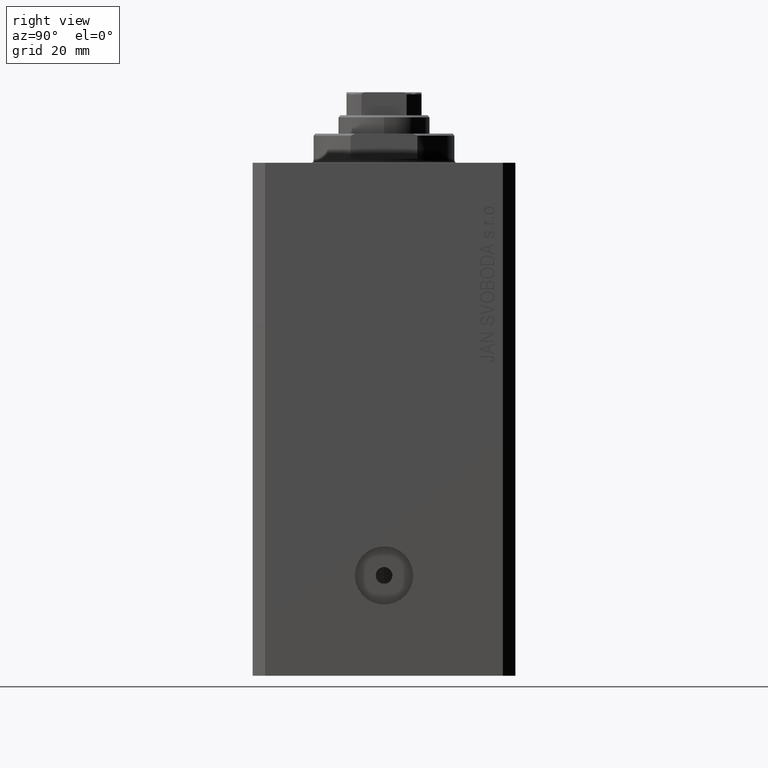
[diagram: clean part render]
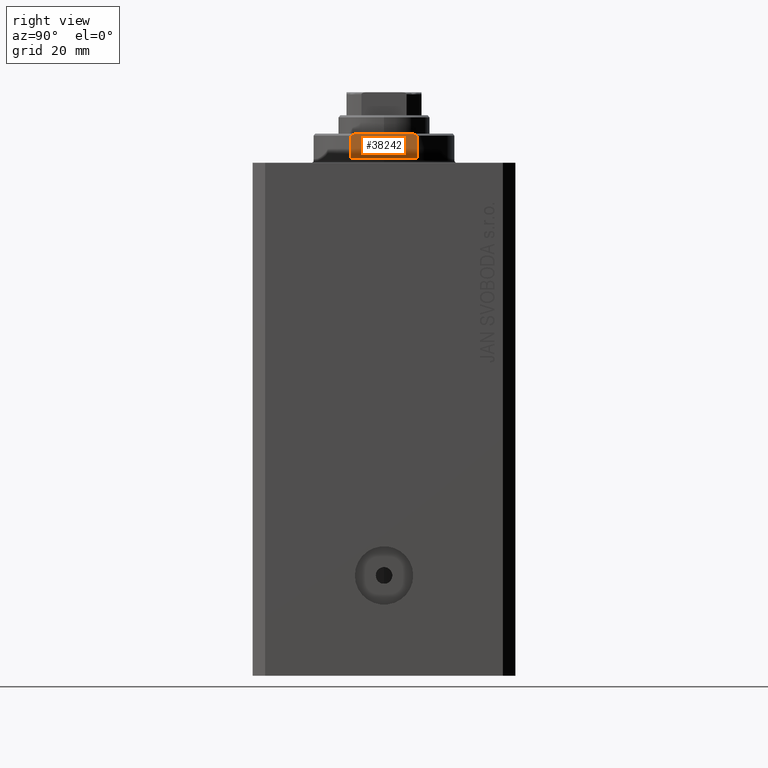
[diagram: same view with one face highlighted and labeled with its STEP entity id]
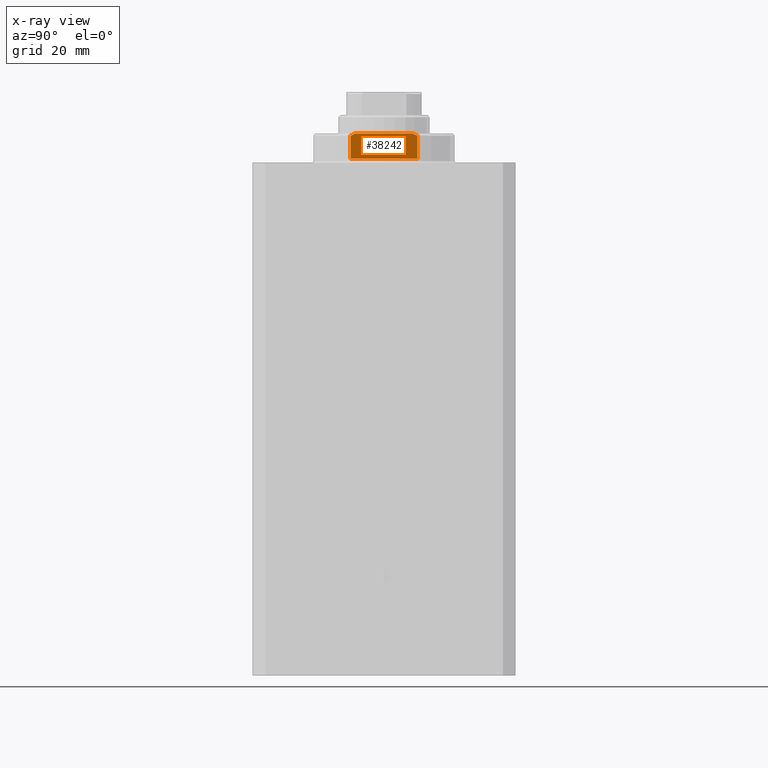
[diagram: x-ray of the same camera — body ghosted, the highlighted face saturated]
A machine part, right view. The second image highlights one B-rep face of the part: STEP entity #38242.
The next image is the same camera in x-ray: the body ghosted, the highlighted face saturated — about 0% of this face is hidden behind the body in this view.
In plain terms, the highlighted planar face has unit normal (-1, 0, 0).
Its self-contained STEP definition (entity closure, byte-faithful):
#974 = VERTEX_POINT ( 'NONE', #27407 ) ;
#1247 = B_SPLINE_CURVE_WITH_KNOTS ( 'NONE', 3,
 ( #40338, #9620, #6260, #3988 ),
 .UNSPECIFIED., .F., .F.,
 ( 4, 4 ),
 ( 0.03336039268696994881, 0.03459498301323800373 ),
 .UNSPECIFIED. ) ;
#1963 = EDGE_CURVE ( 'NONE', #32663, #28319, #29166, .T. ) ;
#2610 = VECTOR ( 'NONE', #17260, 1000.000000000000000 ) ;
#3756 = PLANE ( 'NONE',  #25317 ) ;
#3988 = CARTESIAN_POINT ( 'NONE',  ( -14.99999999999999645, 6.873863542433781504, -7.000000000000000000 ) ) ;
#4201 = DIRECTION ( 'NONE',  ( 0.000000000000000000, 0.000000000000000000, -1.000000000000000000 ) ) ;
#4483 = EDGE_LOOP ( 'NONE', ( #34597, #42770, #8025, #4970, #31559, #22588 ) ) ;
#4970 = ORIENTED_EDGE ( 'NONE', *, *, #40008, .F. ) ;
#6260 = CARTESIAN_POINT ( 'NONE',  ( -15.00000000000000000, 7.253126193285938328, -6.842000017654663147 ) ) ;
#8025 = ORIENTED_EDGE ( 'NONE', *, *, #29683, .T. ) ;
#9283 = EDGE_CURVE ( 'NONE', #11512, #44139, #28437, .T. ) ;
#9620 = CARTESIAN_POINT ( 'NONE',  ( -15.00000000000000000, 7.628315461082487481, -6.674910371255303509 ) ) ;
#11164 = CARTESIAN_POINT ( 'NONE',  ( -15.00000000000000000, -42.42640687119285303, -1.000000000000000000 ) ) ;
#11512 = VERTEX_POINT ( 'NONE', #40446 ) ;
#12474 = VECTOR ( 'NONE', #43948, 1000.000000000000000 ) ;
#13499 = CARTESIAN_POINT ( 'NONE',  ( -14.99999999999999645, 6.873863542433781504, -7.000000000000000000 ) ) ;
#13618 = CARTESIAN_POINT ( 'NONE',  ( -15.00000000000000000, -7.254193676168137372, -6.841555306644506729 ) ) ;
#13883 = EDGE_CURVE ( 'NONE', #11512, #32663, #1247, .T. ) ;
#14300 = DIRECTION ( 'NONE',  ( 1.000000000000000000, 0.000000000000000000, 0.000000000000000000 ) ) ;
#14366 = EDGE_CURVE ( 'NONE', #44139, #41620, #24644, .T. ) ;
#17260 = DIRECTION ( 'NONE',  ( -0.000000000000000000, -1.000000000000000000, -0.000000000000000000 ) ) ;
#19891 = CARTESIAN_POINT ( 'NONE',  ( -15.00000000000000000, -7.629305121525813860, -6.674444648693738102 ) ) ;
#21284 = CARTESIAN_POINT ( 'NONE',  ( -15.00000000000000000, -42.42640687119285303, -1.000000000000000000 ) ) ;
#21916 = LINE ( 'NONE', #32213, #33861 ) ;
#22588 = ORIENTED_EDGE ( 'NONE', *, *, #9283, .F. ) ;
#23459 = CARTESIAN_POINT ( 'NONE',  ( -14.99999999999999645, 8.000000000000003553, -1.000000000000000000 ) ) ;
#23552 = CARTESIAN_POINT ( 'NONE',  ( -15.00000000000000000, -42.42640687119285303, -7.000000000000000000 ) ) ;
#24644 = LINE ( 'NONE', #21284, #2610 ) ;
#25080 = CARTESIAN_POINT ( 'NONE',  ( -15.00000000000000000, 8.000000000000001776, -7.000000000000000000 ) ) ;
#25317 = AXIS2_PLACEMENT_3D ( 'NONE', #11164, #14300, #28624 ) ;
#27062 = CARTESIAN_POINT ( 'NONE',  ( -15.00000000000000000, -6.873863542433783280, -7.000000000000000000 ) ) ;
#27407 = CARTESIAN_POINT ( 'NONE',  ( -15.00000000000000000, -8.000000000000001776, -6.500000000000000888 ) ) ;
#28319 = VERTEX_POINT ( 'NONE', #41745 ) ;
#28437 = LINE ( 'NONE', #25080, #34834 ) ;
#28624 = DIRECTION ( 'NONE',  ( 0.000000000000000000, 0.000000000000000000, -1.000000000000000000 ) ) ;
#29166 = LINE ( 'NONE', #23552, #12474 ) ;
#29683 = EDGE_CURVE ( 'NONE', #28319, #974, #31057, .T. ) ;
#31026 = CARTESIAN_POINT ( 'NONE',  ( -14.99999999999999645, -8.000000000000003553, -1.000000000000000000 ) ) ;
#31057 = B_SPLINE_CURVE_WITH_KNOTS ( 'NONE', 3,
 ( #27062, #13618, #19891, #34235 ),
 .UNSPECIFIED., .F., .F.,
 ( 4, 4 ),
 ( 0.04875332532859016216, 0.04998905627745618696 ),
 .UNSPECIFIED. ) ;
#31559 = ORIENTED_EDGE ( 'NONE', *, *, #14366, .F. ) ;
#31989 = FACE_OUTER_BOUND ( 'NONE', #4483, .T. ) ;
#32213 = CARTESIAN_POINT ( 'NONE',  ( -15.00000000000000000, -8.000000000000001776, -7.000000000000000000 ) ) ;
#32663 = VERTEX_POINT ( 'NONE', #13499 ) ;
#33861 = VECTOR ( 'NONE', #4201, 1000.000000000000000 ) ;
#34235 = CARTESIAN_POINT ( 'NONE',  ( -15.00000000000000000, -8.000000000000001776, -6.500000000000000888 ) ) ;
#34597 = ORIENTED_EDGE ( 'NONE', *, *, #13883, .T. ) ;
#34834 = VECTOR ( 'NONE', #35388, 1000.000000000000000 ) ;
#35388 = DIRECTION ( 'NONE',  ( -0.000000000000000000, -0.000000000000000000, 1.000000000000000000 ) ) ;
#38242 = ADVANCED_FACE ( 'NONE', ( #31989 ), #3756, .F. ) ;
#40008 = EDGE_CURVE ( 'NONE', #41620, #974, #21916, .T. ) ;
#40338 = CARTESIAN_POINT ( 'NONE',  ( -15.00000000000000000, 8.000000000000001776, -6.500000000000000888 ) ) ;
#40446 = CARTESIAN_POINT ( 'NONE',  ( -15.00000000000000000, 8.000000000000001776, -6.500000000000000888 ) ) ;
#41620 = VERTEX_POINT ( 'NONE', #31026 ) ;
#41745 = CARTESIAN_POINT ( 'NONE',  ( -15.00000000000000000, -6.873863542433783280, -7.000000000000000000 ) ) ;
#42770 = ORIENTED_EDGE ( 'NONE', *, *, #1963, .T. ) ;
#43948 = DIRECTION ( 'NONE',  ( -0.000000000000000000, -1.000000000000000000, -0.000000000000000000 ) ) ;
#44139 = VERTEX_POINT ( 'NONE', #23459 ) ;